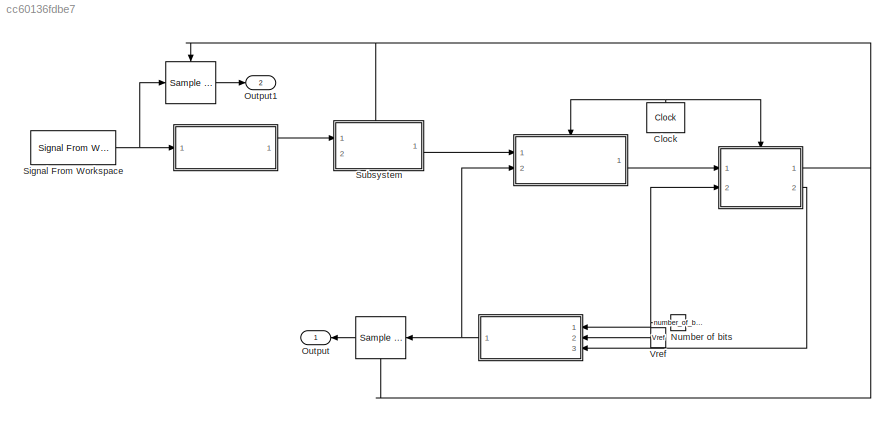
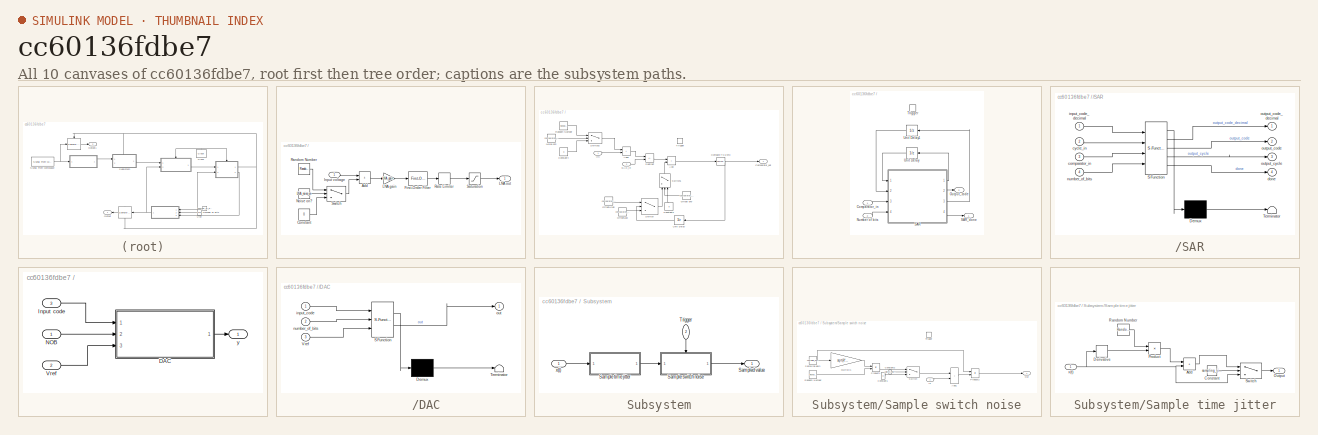
[diagram: thumbnail index - all 10 canvases of the model, root first then tree order]
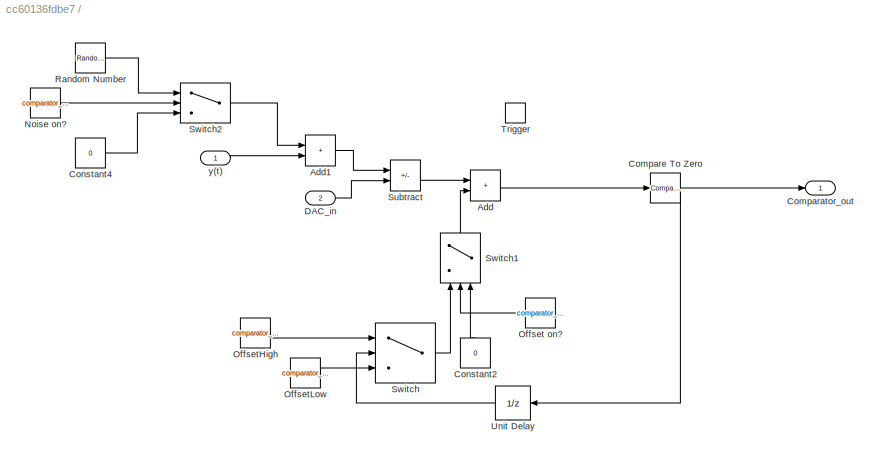
MODEL slx_cc60136fdbe7
KIND model
CONFIG AbsTol = auto
CONFIG EnableMultiTasking = off
CONFIG FixedStep = auto
CONFIG MaxStep = auto
CONFIG MinStep = auto
CONFIG RelTol = 1e-3
CONFIG SampleTimeConstraint = Unconstrained
CONFIG SolverName = VariableStepAuto
CONFIG StartTime = 0.0
CONFIG StopTime = 1
BLOCK [SubSystem]  
  Ports = [1, 1]
  RequestExecContextInheritance = off
BLOCK [SubSystem]   
  Ports = [2, 1, 0, 1]
  RequestExecContextInheritance = off
  TreatAsAtomicUnit = on
BLOCK [SubSystem]     
  Ports = [2, 2, 0, 1]
  RequestExecContextInheritance = off
  TreatAsAtomicUnit = on
BLOCK [SubSystem]        
  Ports = [3, 1]
  RequestExecContextInheritance = off
  TreatAsAtomicUnit = on
BLOCK [Reference]             REF=dspsigops/Sample
and Hold
  Ports = [1, 1, 0, 1]
  SourceBlock = dspsigops/Sample\nand Hold
  SourceProductName = DSP System Toolbox
  SourceType = Sample and Hold
BLOCK [Reference]              REF=dspsigops/Sample
and Hold
  NameLocation = top
  Ports = [1, 1, 0, 1]
  SourceBlock = dspsigops/Sample\nand Hold
  SourceProductName = DSP System Toolbox
  SourceType = Sample and Hold
BLOCK [SubSystem]        /DAC
  ErrorFcn = Stateflow.Translate.translate
  PermitHierarchicalResolution = ExplicitOnly
  Ports = [3, 1]
  RequestExecContextInheritance = off
  SFBlockType = MATLAB Function
  TreatAsAtomicUnit = on
BLOCK [Demux]        /DAC/ Demux 
  Outputs = 1
  Ports = [1, 1]
BLOCK [S-Function]        /DAC/ SFunction 
  EnableBusSupport = on
  FunctionName = sf_sfun
  PortCounts = [3 2]
  Ports = [3, 2]
  SFcnIsStateOwnerBlock = off
  SFunctionDeploymentMode = off
  Tag = Stateflow S-Function 2
BLOCK [Terminator]        /DAC/ Terminator 
BLOCK [Inport]        /DAC/Vref
  Port = 3
BLOCK [Inport]        /DAC/input_code
BLOCK [Inport]        /DAC/number_of_bits
  Port = 2
BLOCK [Outport]        /DAC/out
BLOCK [Inport]        /Input code
  Port = 3
BLOCK [Inport]        /NOB
BLOCK [Inport]        /Vref
  Port = 2
BLOCK [Outport]        /y
BLOCK [Inport]     /Comparator_in
  LatchByDelayingOutsideSignal = on
BLOCK [Inport]     /Number of bits
  Port = 2
BLOCK [Outport]     /Output_code
  InitialOutput = zeros(number_of_bits,1)
  Port = 2
  VarSizeSig = Yes
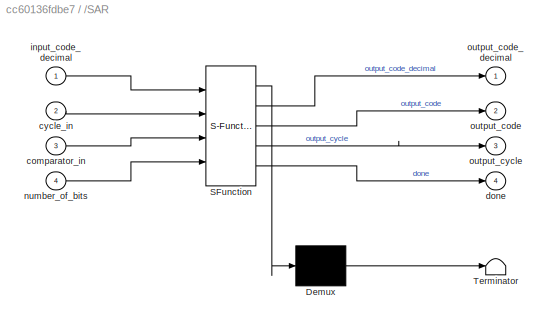
BLOCK [SubSystem]     /SAR
  ErrorFcn = Stateflow.Translate.translate
  PermitHierarchicalResolution = ExplicitOnly
  Ports = [4, 4]
  RequestExecContextInheritance = off
  SFBlockType = MATLAB Function
  TreatAsAtomicUnit = on
BLOCK [Demux]     /SAR/ Demux 
  Outputs = 1
  Ports = [1, 1]
BLOCK [S-Function]     /SAR/ SFunction 
  EnableBusSupport = on
  FunctionName = sf_sfun
  PortCounts = [4 5]
  Ports = [4, 5]
  SFcnIsStateOwnerBlock = off
  SFunctionDeploymentMode = off
  Tag = Stateflow S-Function 3
BLOCK [Terminator]     /SAR/ Terminator 
BLOCK [Inport]     /SAR/comparator_in
  Port = 3
BLOCK [Inport]     /SAR/cycle_in
  Port = 2
BLOCK [Outport]     /SAR/done
  Port = 4
BLOCK [Inport]     /SAR/input_code_decimal
BLOCK [Inport]     /SAR/number_of_bits
  Port = 4
BLOCK [Outport]     /SAR/output_code
  Port = 2
BLOCK [Outport]     /SAR/output_code_decimal
BLOCK [Outport]     /SAR/output_cycle
  Port = 3
BLOCK [Outport]     /SAR_done
BLOCK [TriggerPort]     /Trigger
  Ports = []
  StatesWhenEnabling = held
  VariantControl = Variant
BLOCK [UnitDelay]     /Unit Delay
  HasFrameUpgradeWarning = on
  SampleTime = -1
BLOCK [UnitDelay]     /Unit Delay1
  HasFrameUpgradeWarning = on
  NameLocation = top
  SampleTime = -1
BLOCK [Sum]   /Add
  IconShape = rectangular
  Ports = [2, 1]
BLOCK [Sum]   /Add1
  IconShape = rectangular
  Ports = [2, 1]
BLOCK [Outport]   /Comparator_out
BLOCK [Reference]   /Compare To Zero  REF=simulink/Logic and Bit
Operations/Compare
To Zero
  Ports = [1, 1]
  SourceBlock = simulink/Logic and Bit\nOperations/Compare\nTo Zero
  SourceProductBaseCode = SL
  SourceType = Compare To Zero
BLOCK [Constant]   /Constant2
  NameLocation = right
  Value = 0
BLOCK [Constant]   /Constant4
  Value = 0
BLOCK [Inport]   /DAC_in
  Port = 2
BLOCK [Constant]   /Noise on?
  Value = comparator_noise_on
BLOCK [Constant]   /Offset on?
  Value = comparator_offset_on
BLOCK [Constant]   /OffsetHigh
  Value = comparator_high_offset
  VectorParams1D = off
BLOCK [Constant]   /OffsetLow
  Value = comparator_low_offset
BLOCK [RandomNumber]   /Random Number 
  Variance = comparator_noise_rms^2
BLOCK [Sum]   /Subtract
  IconShape = rectangular
  Inputs = +-
  Ports = [2, 1]
BLOCK [Switch]   /Switch
  Criteria = u2 > Threshold
  InputSameDT = off
  SaturateOnIntegerOverflow = off
BLOCK [Switch]   /Switch1
  Criteria = u2 > Threshold
  InputSameDT = off
  NameLocation = right
  SaturateOnIntegerOverflow = off
BLOCK [Switch]   /Switch2
  Criteria = u2 > Threshold
  InputSameDT = off
  SaturateOnIntegerOverflow = off
BLOCK [TriggerPort]   /Trigger
  Ports = []
  StatesWhenEnabling = held
  VariantControl = Variant
BLOCK [UnitDelay]   /Unit Delay
  HasFrameUpgradeWarning = on
  SampleTime = -1
BLOCK [Inport]   /y(t)
BLOCK [Sum]  /Add
  IconShape = rectangular
  Ports = [2, 1]
BLOCK [Constant]  /Constant
  Value = 0
BLOCK [Reference]  /First-Order Filter   REF=spsFirstOrderFilterLib/First-Order
Filter
  Ports = [1, 1]
  SourceBlock = spsFirstOrderFilterLib/First-Order\nFilter
  SourceProductBaseCode = PS
  SourceType = First-Order Filter
BLOCK [Inport]  /Input voltage
BLOCK [Gain]  /LNA gain
  Gain = LNA_gain
BLOCK [Outport]  /LNA out
BLOCK [Constant]  /Noise on?
  Value = LNA_noise_on
BLOCK [RandomNumber]  /Random Number 
  SampleTime = clk_period*(number_of_bits+1)
  Variance = LNA_input_referred_noise^2
BLOCK [RateLimiter]  /Rate Limiter
  FallingSlewLimit = -LNA_SR
  RisingSlewLimit = LNA_SR
  SampleTimeMode = inherited
BLOCK [Saturate]  /Saturation
  LowerLimit = 0
  UpperLimit = Vref
BLOCK [Switch]  /Switch
  Criteria = u2 > Threshold
  InputSameDT = off
  SaturateOnIntegerOverflow = off
BLOCK [Reference] Clock  REF=simulink_extras/Flip Flops/Clock
  NameLocation = left
  Ports = [0, 1]
  SourceBlock = simulink_extras/Flip Flops/Clock
  SourceProductBaseCode = SL
  SourceType = Digital clock
BLOCK [Constant] Number of bits
  NameLocation = top
  Value = number_of_bits
BLOCK [Outport] Output
BLOCK [Outport] Output1
  NameLocation = top
  Port = 2
BLOCK [Reference] Signal From Workspace  REF=dspsrcs4/Signal From
Workspace
  Ports = [0, 1]
  SourceBlock = dspsrcs4/Signal From\nWorkspace
  SourceProductBaseCode = DS
  SourceType = Signal From Workspace
BLOCK [SubSystem] Subsystem
  PortSchema = {"entries":[{"content":{"sides":[{"content":{"connectorIds":["In1"]},"type":"ConnectorPlacement.EquallySpacedRectSide","uuid":"7dc7a4da-613e-4b0b-8b13-7686a16d7398"},{"content":{"connectorIds":["Out1"],"side":"RIGHT"},"type":"ConnectorPlacement.EquallySpacedRectSide","uuid":"45e05abc-e512-455b-8082-6639e5b5b38c"},{"content":{"connectorIds":["In2"],"side":"TOP"},"type":"ConnectorPlacement.EquallySp...<+389ch>
  Ports = [2, 1]
  RequestExecContextInheritance = off
BLOCK [SubSystem] Subsystem/Sample switch noise
  Ports = [1, 1, 0, 1]
  RequestExecContextInheritance = off
  TreatAsAtomicUnit = on
BLOCK [Sum] Subsystem/Sample switch noise/Add1
  IconShape = rectangular
  Ports = [2, 1]
BLOCK [Constant] Subsystem/Sample switch noise/Constant1
  Value = 0
BLOCK [Constant] Subsystem/Sample switch noise/Constant2
  Value = switch_noise_on
BLOCK [Inport] Subsystem/Sample switch noise/In
BLOCK [Gain] Subsystem/Sample switch noise/Multiply1
  Gain = sqrt(k*T/(sampling_gain*Cf))
  OutDataTypeStr = Inherit: Same as input
BLOCK [Outport] Subsystem/Sample switch noise/Out
BLOCK [Product] Subsystem/Sample switch noise/Product1
  Ports = [2, 1]
BLOCK [Product] Subsystem/Sample switch noise/Product2
  Ports = [2, 1]
BLOCK [RandomNumber] Subsystem/Sample switch noise/Random Number  
  Variance = switching_noise
BLOCK [Constant] Subsystem/Sample switch noise/Sampling gain
  Value = sampling_gain
BLOCK [Switch] Subsystem/Sample switch noise/Switch
  Criteria = u2 > Threshold
  InputSameDT = off
  SaturateOnIntegerOverflow = off
BLOCK [TriggerPort] Subsystem/Sample switch noise/Trigger
  Ports = []
  StatesWhenEnabling = held
  VariantControl = Variant
BLOCK [SubSystem] Subsystem/Sample time jitter
  Ports = [1, 1]
  RequestExecContextInheritance = off
BLOCK [Sum] Subsystem/Sample time jitter/Add
  IconShape = rectangular
  Ports = [2, 1]
BLOCK [Constant] Subsystem/Sample time jitter/Constant
  Value = sampling_jitter_on
BLOCK [Derivative] Subsystem/Sample time jitter/Derivative
BLOCK [Outport] Subsystem/Sample time jitter/Output
BLOCK [Product] Subsystem/Sample time jitter/Product
  Ports = [2, 1]
BLOCK [RandomNumber] Subsystem/Sample time jitter/Random Number 
  SampleTime = clk_period*(number_of_bits+1)
  Variance = sample_time_jitter^2
BLOCK [Switch] Subsystem/Sample time jitter/Switch
  Criteria = u2 > Threshold
  InputSameDT = off
  SaturateOnIntegerOverflow = off
BLOCK [Inport] Subsystem/Sample time jitter/x(t)
BLOCK [Outport] Subsystem/Sampled value
BLOCK [Inport] Subsystem/Trigger
  NameLocation = left
  Port = 2
BLOCK [Inport] Subsystem/x(t)
BLOCK [Constant] Vref
  NameLocation = top
  Value = Vref
LINE            :1 -> Output:1
LINE           :1 -> Output1:1
LINE        /DAC:1 ->        /y:1
LINE        /Input code:1 ->        /DAC:1
LINE        /NOB:1 ->        /DAC:2
LINE        /Vref:1 ->        /DAC:3
NET        :1 ->            :1,   :2
LINE     /Comparator_in:1 ->     /SAR:3
LINE     /Number of bits:1 ->     /SAR:4
LINE     /SAR:1 ->     /Unit Delay:1
LINE     /SAR:2 ->     /Output_code:1
LINE     /SAR:3 ->     /Unit Delay1:1
LINE     /SAR:4 ->     /SAR_done:1
LINE     /Unit Delay1:1 ->     /SAR:2
LINE     /Unit Delay:1 ->     /SAR:1
NET     :1 ->            :trigger,           :trigger, Subsystem:2
LINE     :2 ->        :3
LINE   /Add1:1 ->   /Subtract:1
LINE   /Add:1 ->   /Compare To Zero:1
NET   /Compare To Zero:1 ->   /Comparator_out:1,   /Unit Delay:1
LINE   /Constant2:1 ->   /Switch1:3
LINE   /Constant4:1 ->   /Switch2:3
LINE   /DAC_in:1 ->   /Subtract:2
LINE   /Noise on?:1 ->   /Switch2:2
LINE   /Offset on?:1 ->   /Switch1:2
LINE   /OffsetHigh:1 ->   /Switch:1
LINE   /OffsetLow:1 ->   /Switch:3
LINE   /Random Number :1 ->   /Switch2:1
LINE   /Subtract:1 ->   /Add:1
LINE   /Switch1:1 ->   /Add:2
LINE   /Switch2:1 ->   /Add1:1
LINE   /Switch:1 ->   /Switch1:1
LINE   /Unit Delay:1 ->   /Switch:2
LINE   /y(t):1 ->   /Add1:2
LINE   :1 ->     :1
LINE  /Add:1 ->  /LNA gain:1
LINE  /Constant:1 ->  /Switch:3
LINE  /First-Order Filter :1 ->  /Rate Limiter:1
LINE  /Input voltage:1 ->  /Add:1
LINE  /LNA gain:1 ->  /First-Order Filter :1
LINE  /Noise on?:1 ->  /Switch:2
LINE  /Random Number :1 ->  /Switch:1
LINE  /Rate Limiter:1 ->  /Saturation:1
LINE  /Saturation:1 ->  /LNA out:1
LINE  /Switch:1 ->  /Add:2
LINE  :1 -> Subsystem:1
NET Clock:1 ->     :trigger,   :trigger
NET Number of bits:1 ->        :1,     :2
NET Signal From Workspace:1 ->           :1,  :1
LINE Subsystem/Sample switch noise/Add1:1 -> Subsystem/Sample switch noise/Product2:2
LINE Subsystem/Sample switch noise/Constant1:1 -> Subsystem/Sample switch noise/Switch:3
LINE Subsystem/Sample switch noise/Constant2:1 -> Subsystem/Sample switch noise/Switch:2
LINE Subsystem/Sample switch noise/In:1 -> Subsystem/Sample switch noise/Add1:2
LINE Subsystem/Sample switch noise/Multiply1:1 -> Subsystem/Sample switch noise/Product1:1
LINE Subsystem/Sample switch noise/Product1:1 -> Subsystem/Sample switch noise/Switch:1
LINE Subsystem/Sample switch noise/Product2:1 -> Subsystem/Sample switch noise/Out:1
LINE Subsystem/Sample switch noise/Random Number  :1 -> Subsystem/Sample switch noise/Product1:2
NET Subsystem/Sample switch noise/Sampling gain:1 -> Subsystem/Sample switch noise/Multiply1:1, Subsystem/Sample switch noise/Product2:1
LINE Subsystem/Sample switch noise/Switch:1 -> Subsystem/Sample switch noise/Add1:1
LINE Subsystem/Sample switch noise:1 -> Subsystem/Sampled value:1
LINE Subsystem/Sample time jitter/Add:1 -> Subsystem/Sample time jitter/Switch:1
LINE Subsystem/Sample time jitter/Constant:1 -> Subsystem/Sample time jitter/Switch:2
LINE Subsystem/Sample time jitter/Derivative:1 -> Subsystem/Sample time jitter/Product:2
LINE Subsystem/Sample time jitter/Product:1 -> Subsystem/Sample time jitter/Add:1
LINE Subsystem/Sample time jitter/Random Number :1 -> Subsystem/Sample time jitter/Product:1
LINE Subsystem/Sample time jitter/Switch:1 -> Subsystem/Sample time jitter/Output:1
NET Subsystem/Sample time jitter/x(t):1 -> Subsystem/Sample time jitter/Add:2, Subsystem/Sample time jitter/Derivative:1, Subsystem/Sample time jitter/Switch:3
LINE Subsystem/Sample time jitter:1 -> Subsystem/Sample switch noise:1
LINE Subsystem/Trigger:1 -> Subsystem/Sample switch noise:trigger
LINE Subsystem/x(t):1 -> Subsystem/Sample time jitter:1
LINE Subsystem:1 ->   :1
LINE Vref:1 ->        :2
note: NET lines group one-source signal fan-out (src -> all destinations, sorted); 1:1 wires keep LINE
CHART        /DAC states=1 transitions=1
  STATE_LABEL 'eML_blk_kernel()'
  STATE_LABEL "SCRIPT:\nfunction out = fcn(input_code, number_of_bits, Vref)\nout = Vref/(2^number_of_bits)*(bi2de(input_code.', 'left-msb'));\nend\n\n\n"
CHART     /SAR states=1 transitions=1
  STATE_LABEL 'eML_blk_kernel()'
  STATE_LABEL "SCRIPT:\nfunction [output_code_decimal, output_code, output_cycle, done] = fcn(input_code_decimal, cycle_in, comparator_in, number_of_bits)\n\n    input_code = de2bi(input_code_decimal, 'left-msb');\n    output_code = [zeros(number_of_bits-size(input_code.',1),1); input_code.'];\n\n\n    if (cycle_in == number_of_bits)\n        done = 1;\n        output_code(number_of_bits,1) = comparator_in;\n        outpu...<+481ch>"
CHART  states=0 transitions=0
CHART  states=0 transitions=0
